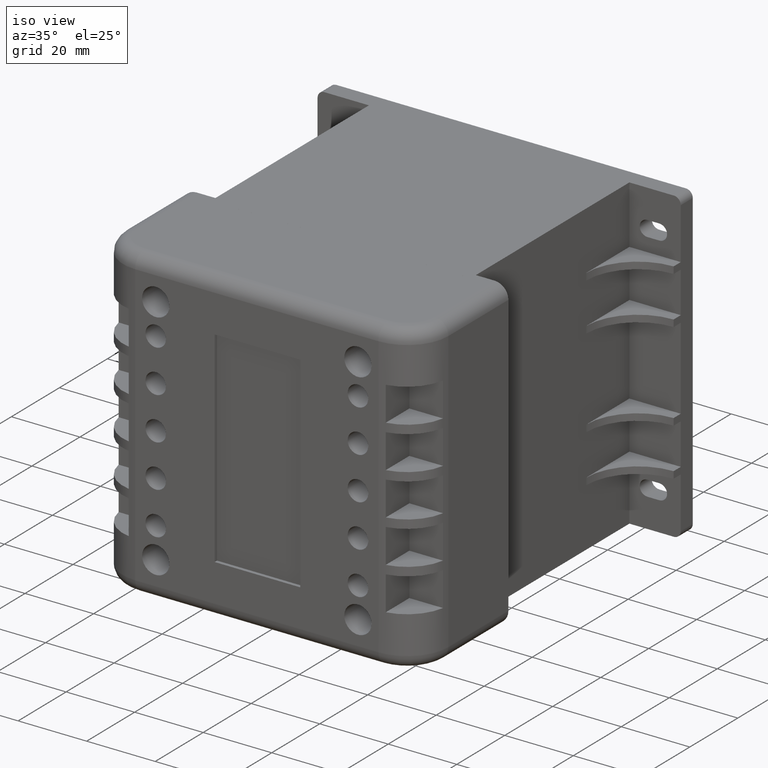
[diagram: clean part render]
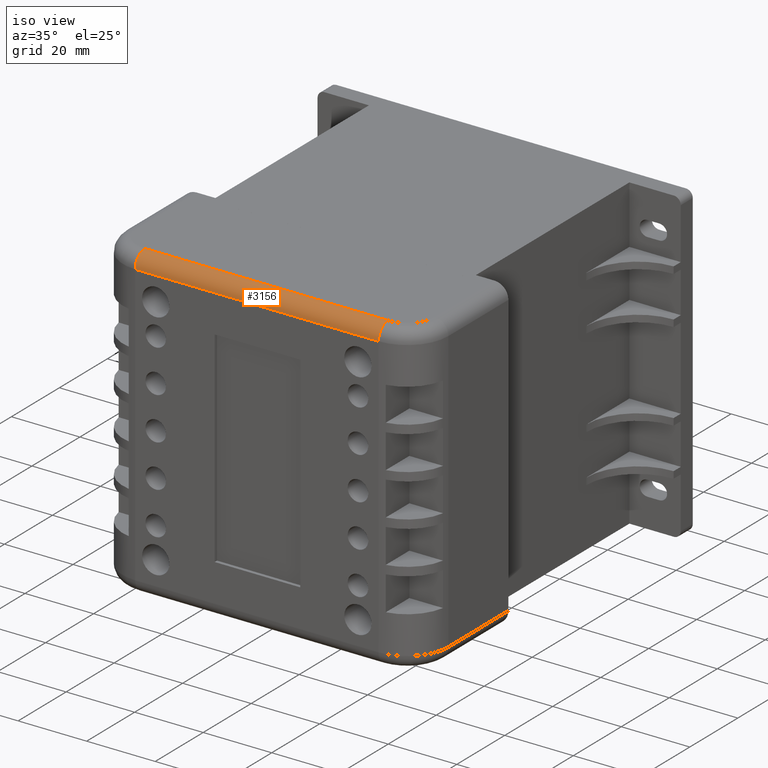
[diagram: same view with one face highlighted and labeled with its STEP entity id]
A machine part, iso view. The second image highlights one B-rep face of the part: STEP entity #3156.
In plain terms, the highlighted cylindrical surface (edge-blend (fillet) strip) has radius 4 mm, axis along (-1, 0, -0).
Its self-contained STEP definition (entity closure, byte-faithful):
#45=CYLINDRICAL_SURFACE('',#3499,4.);
#110=CIRCLE('',#3496,4.);
#113=CIRCLE('',#3500,4.);
#287=FACE_OUTER_BOUND('',#477,.T.);
#477=EDGE_LOOP('',(#2138,#2139,#2140,#2141));
#718=LINE('',#4873,#1022);
#719=LINE('',#4874,#1023);
#1022=VECTOR('',#3986,10.);
#1023=VECTOR('',#3987,10.);
#1329=VERTEX_POINT('',#4864);
#1330=VERTEX_POINT('',#4865);
#1331=VERTEX_POINT('',#4870);
#1332=VERTEX_POINT('',#4871);
#1639=EDGE_CURVE('',#1329,#1330,#110,.T.);
#1642=EDGE_CURVE('',#1331,#1332,#113,.T.);
#1643=EDGE_CURVE('',#1332,#1330,#718,.T.);
#1644=EDGE_CURVE('',#1329,#1331,#719,.T.);
#2138=ORIENTED_EDGE('',*,*,#1642,.T.);
#2139=ORIENTED_EDGE('',*,*,#1643,.T.);
#2140=ORIENTED_EDGE('',*,*,#1639,.F.);
#2141=ORIENTED_EDGE('',*,*,#1644,.T.);
#3156=ADVANCED_FACE('',(#287),#45,.T.);
#3496=AXIS2_PLACEMENT_3D('',#4866,#3976,#3977);
#3499=AXIS2_PLACEMENT_3D('',#4869,#3982,#3983);
#3500=AXIS2_PLACEMENT_3D('',#4872,#3984,#3985);
#3976=DIRECTION('center_axis',(-1.,0.,0.));
#3977=DIRECTION('ref_axis',(0.,0.,1.));
#3982=DIRECTION('center_axis',(1.,0.,0.));
#3983=DIRECTION('ref_axis',(0.,0.707106781186545,0.70710678118655));
#3984=DIRECTION('center_axis',(-1.,-5.55111512312578E-16,0.));
#3985=DIRECTION('ref_axis',(0.,0.,1.));
#3986=DIRECTION('',(-1.,0.,0.));
#3987=DIRECTION('',(1.,0.,0.));
#4864=CARTESIAN_POINT('',(-83.,33.,90.));
#4865=CARTESIAN_POINT('',(-83.,37.,86.));
#4866=CARTESIAN_POINT('Origin',(-83.,33.,86.));
#4869=CARTESIAN_POINT('Origin',(-71.25,33.,86.));
#4870=CARTESIAN_POINT('',(-12.,33.,90.));
#4871=CARTESIAN_POINT('',(-12.,37.,86.));
#4872=CARTESIAN_POINT('Origin',(-12.,33.,86.));
#4873=CARTESIAN_POINT('',(-71.25,37.,86.));
#4874=CARTESIAN_POINT('',(-71.25,33.,90.));